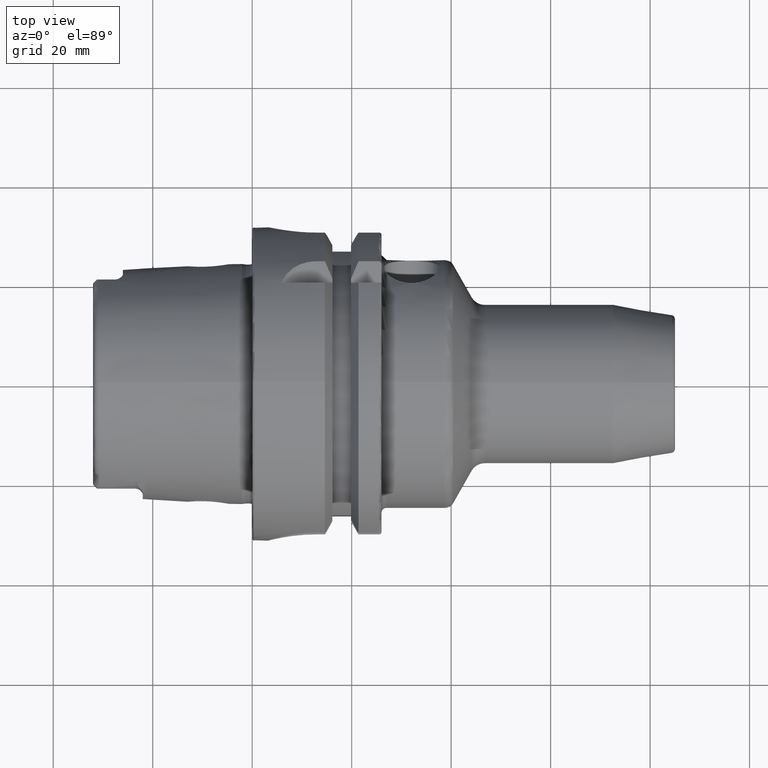
[diagram: clean part render]
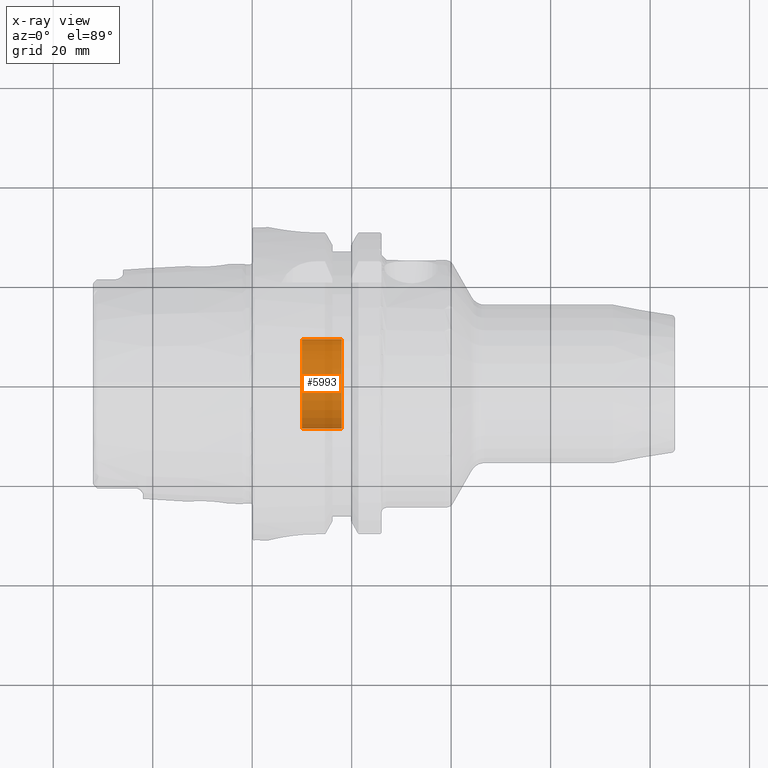
[diagram: x-ray — body ghosted, one internal face saturated and labeled with its STEP entity id]
A machine part, top view, then the same camera in x-ray: the body is ghosted and one INTERNAL B-rep face — a face not visible from any outside direction — is saturated and labeled: STEP entity #5993.
In plain terms, the highlighted cylindrical surface (partial cylindrical patch) has radius 9 mm, axis along (-1, 0, 0).
Its self-contained STEP definition (entity closure, byte-faithful):
#5928=CARTESIAN_POINT('',(1.E1,0.E0,0.E0));
#5929=DIRECTION('',(1.E0,0.E0,0.E0));
#5930=DIRECTION('',(0.E0,-1.E0,0.E0));
#5931=AXIS2_PLACEMENT_3D('',#5928,#5929,#5930);
#5938=DIRECTION('',(1.E0,0.E0,0.E0));
#5939=VECTOR('',#5938,8.E0);
#5940=CARTESIAN_POINT('',(1.E1,-9.E0,0.E0));
#5941=LINE('',#5940,#5939);
#5942=DIRECTION('',(1.E0,0.E0,0.E0));
#5943=VECTOR('',#5942,8.E0);
#5944=CARTESIAN_POINT('',(1.E1,9.E0,0.E0));
#5945=LINE('',#5944,#5943);
#5951=CARTESIAN_POINT('',(1.8E1,0.E0,0.E0));
#5952=DIRECTION('',(-1.E0,0.E0,0.E0));
#5953=DIRECTION('',(0.E0,1.E0,0.E0));
#5954=AXIS2_PLACEMENT_3D('',#5951,#5952,#5953);
#5966=CARTESIAN_POINT('',(1.8E1,9.E0,0.E0));
#5967=CARTESIAN_POINT('',(1.8E1,-9.E0,0.E0));
#5968=VERTEX_POINT('',#5966);
#5969=VERTEX_POINT('',#5967);
#5970=CARTESIAN_POINT('',(1.E1,9.E0,0.E0));
#5971=CARTESIAN_POINT('',(1.E1,-9.E0,0.E0));
#5972=VERTEX_POINT('',#5970);
#5973=VERTEX_POINT('',#5971);
#5978=CARTESIAN_POINT('',(2.376268102482E1,0.E0,0.E0));
#5979=DIRECTION('',(-1.E0,0.E0,0.E0));
#5980=DIRECTION('',(0.E0,1.E0,0.E0));
#5981=AXIS2_PLACEMENT_3D('',#5978,#5979,#5980);
#5982=CYLINDRICAL_SURFACE('',#5981,9.E0);
#5984=ORIENTED_EDGE('',*,*,#5983,.T.);
#5986=ORIENTED_EDGE('',*,*,#5985,.T.);
#5988=ORIENTED_EDGE('',*,*,#5987,.T.);
#5990=ORIENTED_EDGE('',*,*,#5989,.F.);
#5991=EDGE_LOOP('',(#5984,#5986,#5988,#5990));
#5992=FACE_OUTER_BOUND('',#5991,.F.);
#5993=ADVANCED_FACE('',(#5992),#5982,.F.);
#5932=CIRCLE('',#5931,9.E0);
#5955=CIRCLE('',#5954,9.E0);
#5983=EDGE_CURVE('',#5973,#5972,#5932,.T.);
#5985=EDGE_CURVE('',#5972,#5968,#5945,.T.);
#5987=EDGE_CURVE('',#5968,#5969,#5955,.T.);
#5989=EDGE_CURVE('',#5973,#5969,#5941,.T.);